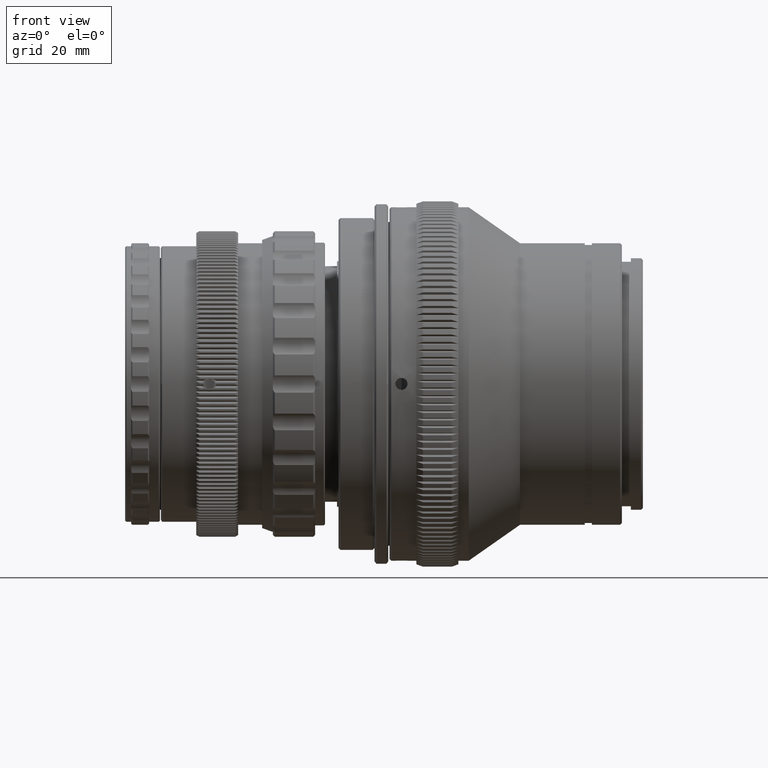
[diagram: clean part render]
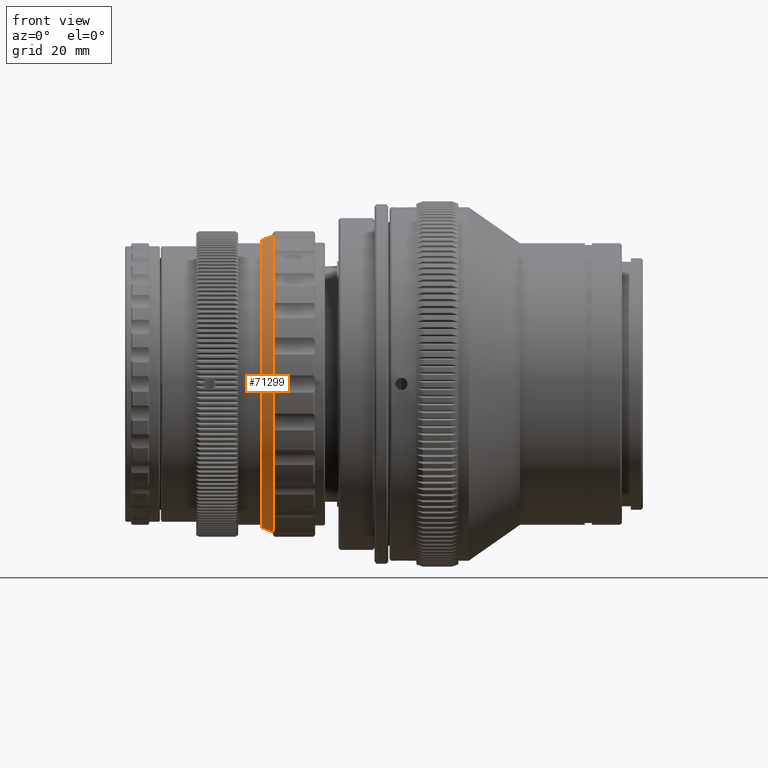
[diagram: same view with one face highlighted and labeled with its STEP entity id]
A machine part, front view. The second image highlights one B-rep face of the part: STEP entity #71299.
In plain terms, the highlighted conical surface has half-angle 20 deg.
Its self-contained STEP definition (entity closure, byte-faithful):
#155 = CIRCLE ( 'NONE', #60324, 24.70514642167916700 ) ;
#4022 = VERTEX_POINT ( 'NONE', #7767 ) ;
#7767 = CARTESIAN_POINT ( 'NONE',  ( -1.000000000000000900, 0.0000000000000000000, -24.05000000000000100 ) ) ;
#11940 = ORIENTED_EDGE ( 'NONE', *, *, #78172, .T. ) ;
#12090 = DIRECTION ( 'NONE',  ( 0.0000000000000000000, 0.0000000000000000000, -1.000000000000000000 ) ) ;
#13312 = DIRECTION ( 'NONE',  ( 1.000000000000000000, 0.0000000000000000000, 0.0000000000000000000 ) ) ;
#15711 = EDGE_CURVE ( 'NONE', #4022, #65739, #69256, .T. ) ;
#18493 = AXIS2_PLACEMENT_3D ( 'NONE', #70695, #56645, #49475 ) ;
#19674 = CARTESIAN_POINT ( 'NONE',  ( 0.7999999999999951600, 0.0000000000000000000, -24.70514642167916700 ) ) ;
#21274 = DIRECTION ( 'NONE',  ( 0.9396926207859077600, 0.0000000000000000000, -0.3420201433256703200 ) ) ;
#24959 = LINE ( 'NONE', #65067, #36168 ) ;
#27816 = EDGE_LOOP ( 'NONE', ( #56298, #37385, #11940, #64169 ) ) ;
#29114 = LINE ( 'NONE', #78860, #85119 ) ;
#30844 = CARTESIAN_POINT ( 'NONE',  ( 0.7999999999999951600, 0.0000000000000000000, 0.0000000000000000000 ) ) ;
#32956 = EDGE_CURVE ( 'NONE', #65739, #45307, #24959, .T. ) ;
#35276 = EDGE_CURVE ( 'NONE', #4022, #62161, #29114, .T. ) ;
#35790 = AXIS2_PLACEMENT_3D ( 'NONE', #77236, #13312, #12090 ) ;
#36168 = VECTOR ( 'NONE', #50673, 1000.000000000000200 ) ;
#37385 = ORIENTED_EDGE ( 'NONE', *, *, #32956, .T. ) ;
#44973 = DIRECTION ( 'NONE',  ( -1.000000000000000000, -0.0000000000000000000, -0.0000000000000000000 ) ) ;
#45307 = VERTEX_POINT ( 'NONE', #57897 ) ;
#49475 = DIRECTION ( 'NONE',  ( 0.0000000000000000000, 0.0000000000000000000, -1.000000000000000000 ) ) ;
#50673 = DIRECTION ( 'NONE',  ( 0.9396926207859077600, 4.188538737677011500E-017, 0.3420201433256703200 ) ) ;
#55368 = CARTESIAN_POINT ( 'NONE',  ( -1.000000000000000900, 2.985391700363495900E-015, 24.05000000000000100 ) ) ;
#56298 = ORIENTED_EDGE ( 'NONE', *, *, #15711, .T. ) ;
#56608 = FACE_OUTER_BOUND ( 'NONE', #27816, .T. ) ;
#56645 = DIRECTION ( 'NONE',  ( 1.000000000000000000, 0.0000000000000000000, 0.0000000000000000000 ) ) ;
#57897 = CARTESIAN_POINT ( 'NONE',  ( 0.7999999999999951600, 3.025507848777608100E-015, 24.70514642167916700 ) ) ;
#60324 = AXIS2_PLACEMENT_3D ( 'NONE', #30844, #44973, #79686 ) ;
#62161 = VERTEX_POINT ( 'NONE', #19674 ) ;
#64169 = ORIENTED_EDGE ( 'NONE', *, *, #35276, .F. ) ;
#65067 = CARTESIAN_POINT ( 'NONE',  ( 0.8000000000000010400, 3.025507848777608500E-015, 24.70514642167917100 ) ) ;
#65739 = VERTEX_POINT ( 'NONE', #55368 ) ;
#69256 = CIRCLE ( 'NONE', #35790, 24.05000000000000100 ) ;
#69948 = CONICAL_SURFACE ( 'NONE', #18493, 24.70514642167917100, 0.3490658503988676200 ) ;
#70695 = CARTESIAN_POINT ( 'NONE',  ( 0.8000000000000010400, 0.0000000000000000000, 0.0000000000000000000 ) ) ;
#71299 = ADVANCED_FACE ( 'NONE', ( #56608 ), #69948, .T. ) ;
#77236 = CARTESIAN_POINT ( 'NONE',  ( -1.000000000000000900, 0.0000000000000000000, 0.0000000000000000000 ) ) ;
#78172 = EDGE_CURVE ( 'NONE', #45307, #62161, #155, .T. ) ;
#78860 = CARTESIAN_POINT ( 'NONE',  ( 0.8000000000000010400, 0.0000000000000000000, -24.70514642167917100 ) ) ;
#79686 = DIRECTION ( 'NONE',  ( 0.0000000000000000000, 0.0000000000000000000, -1.000000000000000000 ) ) ;
#85119 = VECTOR ( 'NONE', #21274, 1000.000000000000200 ) ;